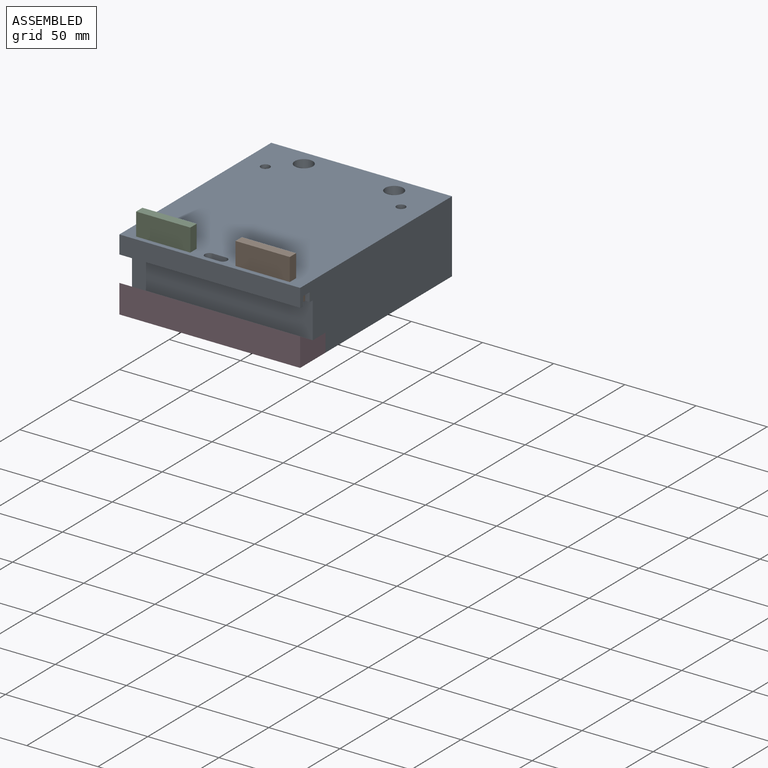
[diagram: assembled view]
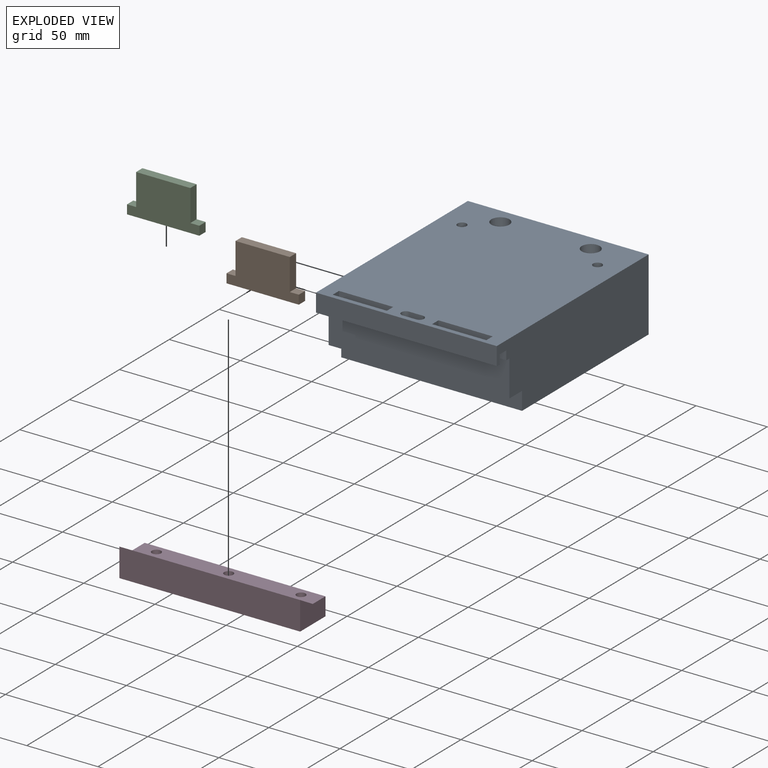
[diagram: exploded view]
GUIDED TOUR — MATED ASSEMBLY (Onshape document d9a144167c7f9d420005e96d, AutoMate assembly d9a144167c7f9d420005e96d_159f322b29f10cdbaa24fca3_0e208d33bbd569624d012d57_default)

This assembly has 4 components, labeled P0..P3 below (a component is one placed occurrence of a part; the same part can appear more than once), held together by 3 mates. A mate is a constraint between two components; its type names the relative motion it leaves free:
  PLANAR — leaves sliding in the plane through the listed point (normal = the listed direction) and rotation about that normal free.
Axis/direction vectors are unit vectors and 'through' points are millimeter coordinates, both in the assembly's world frame.

MATES
  1. PLANAR "Planar 1": P3 <-> P0, direction (0.000, 0.000, 1.000) through (-6.27, -62.76, -68.65) mm
  2. PLANAR "Planar 3": P2 <-> P0, direction (0.000, 0.000, 1.000) through (-123.74, -84.99, -36.90) mm
  3. PLANAR "Planar 2": P1 <-> P0, direction (0.000, 0.000, 1.000) through (-15.79, -84.99, -36.90) mm

ASSEMBLY ORDER
  1. P1 — the base component [order verified]
  2. P0 [order verified]
  3. P2 [order verified]
  4. P3 [order verified]
Order-tag legend:
  [order verified] — this step's position reverses a verified removal order: the component was checked to insert without passing through the ones already placed.

Of the 4 components, 4 carry the full construction recipe — the FeatureScript program that regenerates the part's solid from scratch; the rest are supplied as boundary geometry only.
Each toured component is shown spotlighted twice — in the assembled view, then in the exploded view, where a leader line traces a displaced component back to its assembled socket (saturated green if recipe-attached, orange if geometry-only; every other component desaturated gray) — followed by its recipe or geometry summary and the mates that hold it.
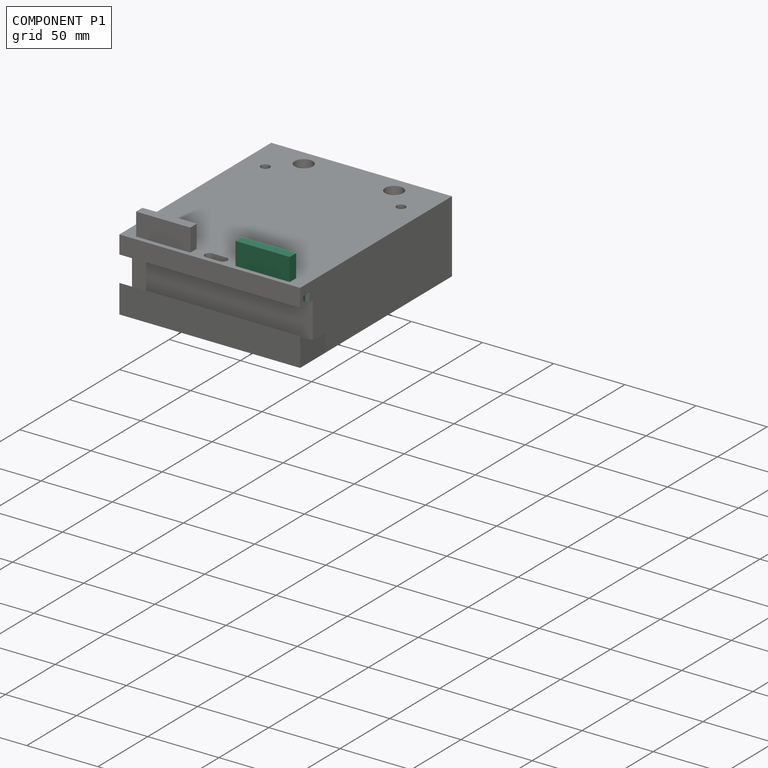
[diagram: component P1 — assembled]
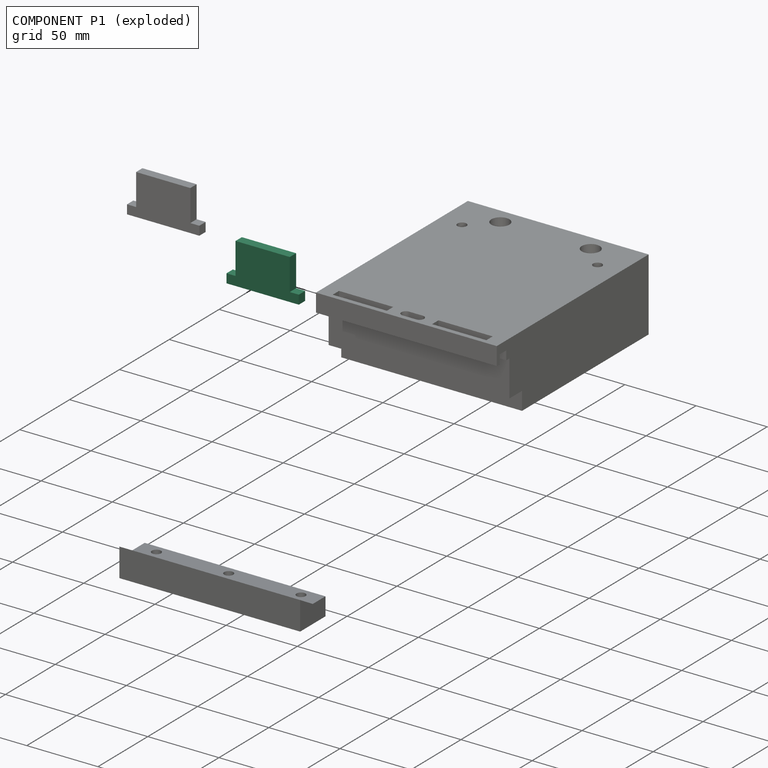
[diagram: component P1 — exploded]
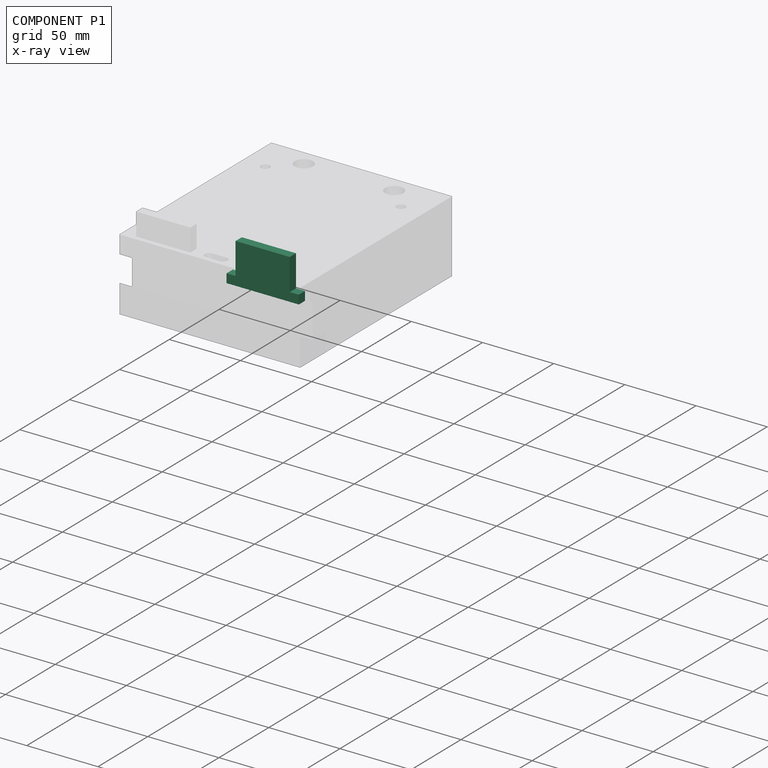
[diagram: component P1 — x-ray view]
COMPONENT P1 — recipe-attached (CADFS 00811123, mesh-verified: the recipe's output STEP matches this component's geometry to below the mesh-comparison resolution (tessellation chordal tolerance ~0.0879 mm)).
Held by: PLANAR mate "Planar 2" to P0.
Construction recipe (FeatureScript — the CAD program that rebuilds this solid; sketch coordinates are in the units given by the * unit suffixes, e.g. mm):

FeatureScript 1511;
import(path : "onshape/std/geometry.fs", version : "1511.0");
import(path : "onshape/std/common.fs", version : "1511.0");
const mm = millimeter;
const VERTEX = EntityType.VERTEX;
const EDGE = EntityType.EDGE;
const FACE = EntityType.FACE;
const BODY = EntityType.BODY;
function v(x, y){return vector(x, y);}
function OD(order){return orderDisambiguation(order);}
function OSD(set){return originalSetDisambiguation(set);}
function TD(topology){return topologyDisambiguation(topology);}
function TDD(query){return trueDependencyDisambiguation(query);}
function sQuery(a, b, c) {return sketchEntityQuery(a, b, c);}

annotation { "Feature Type Name" : "Feature", "Feature Type Description" : "" }
export const myFeature = defineFeature(function(context is Context, id is Id, definition is map)
    precondition{}
    {
        {
            var Q0;
            Q0=qCreatedBy(makeId("Front.planeOp"),FACE);
            var sketch = newSketch(context, id + "F0", { "sketchPlane" : qUnion([Q0])});
            skLineSegment(sketch, "E0", {"start": v(0, 0) * mm, "end": v(0, 6.35) * mm});
            skLineSegment(sketch, "E1", {"start": v(0, 6.35) * mm, "end": v(6.35, 6.35) * mm});
            skLineSegment(sketch, "E2", {"start": v(6.35, 6.35) * mm, "end": v(6.35, 28.57) * mm});
            skLineSegment(sketch, "E3", {"start": v(6.35, 28.57) * mm, "end": v(44.45, 28.57) * mm});
            skLineSegment(sketch, "E4", {"start": v(44.45, 28.57) * mm, "end": v(44.45, 6.35) * mm});
            skLineSegment(sketch, "E5", {"start": v(44.45, 6.35) * mm, "end": v(50.8, 6.35) * mm});
            skLineSegment(sketch, "E6", {"start": v(50.8, 6.35) * mm, "end": v(50.8, 0) * mm});
            skLineSegment(sketch, "E7", {"start": v(50.8, 0) * mm, "end": v(0, 0) * mm});
            skSolve(sketch);
        }
        {
            var Q0;
            Q0 = qSketchRegion(id + "F0", true);
            extrude(context, id + "F1", {"entities" : qUnion([Q0]), "oppositeDirection" : true, "depth" : 6.35 * mm, "offsetDistance" : 25.4 * mm});
        }
    });
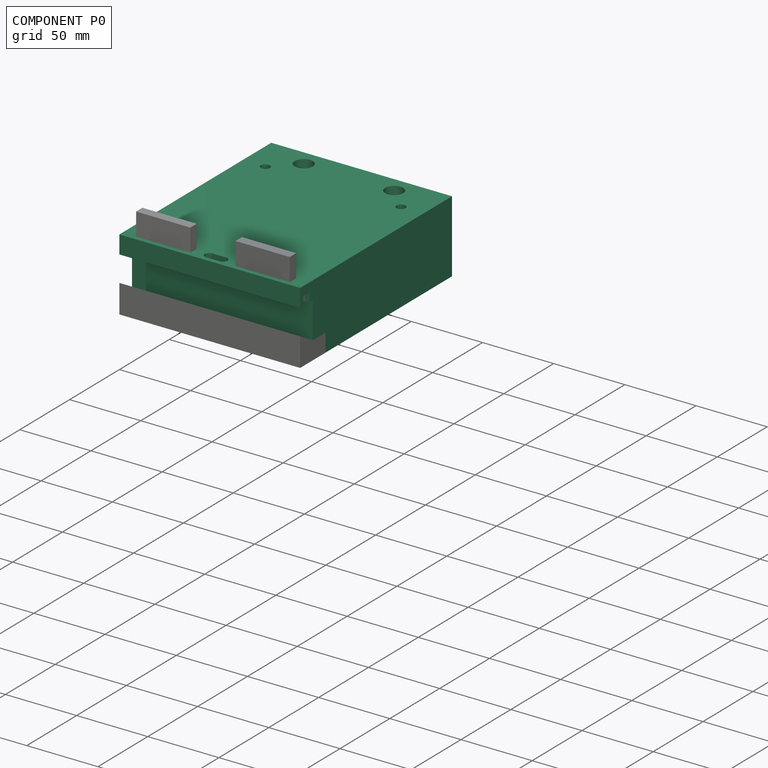
[diagram: component P0 — assembled]
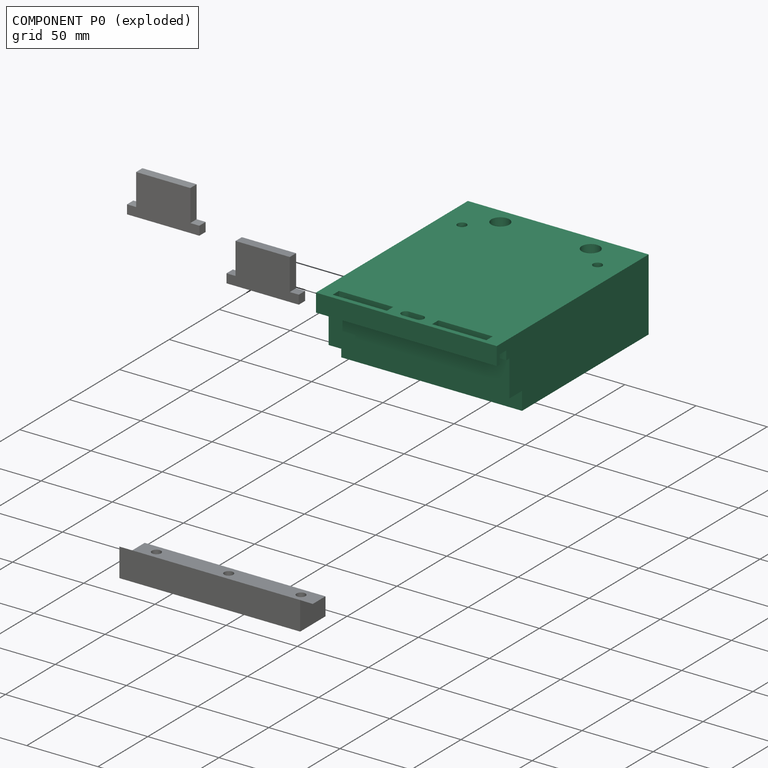
[diagram: component P0 — exploded]
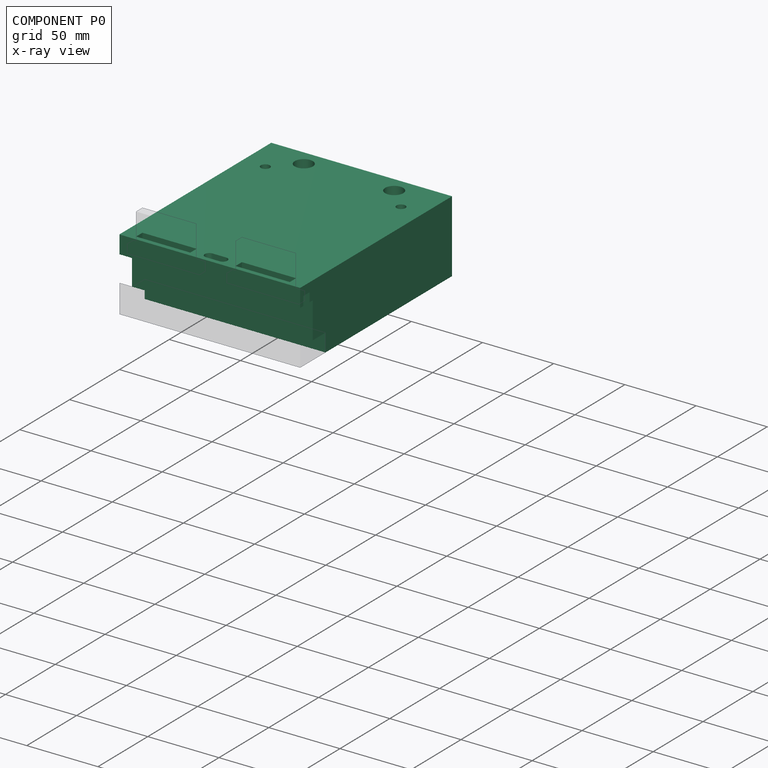
[diagram: component P0 — x-ray view]
COMPONENT P0 — recipe-attached (CADFS 00811121, mesh-verified: the recipe's output STEP matches this component's geometry to below the mesh-comparison resolution (tessellation chordal tolerance ~0.307 mm)).
Held by: PLANAR mate "Planar 1" to P3; PLANAR mate "Planar 3" to P2; PLANAR mate "Planar 2" to P1.
Construction recipe (FeatureScript — the CAD program that rebuilds this solid; sketch coordinates are in the units given by the * unit suffixes, e.g. mm):

FeatureScript 1511;
import(path : "onshape/std/geometry.fs", version : "1511.0");
import(path : "onshape/std/common.fs", version : "1511.0");
const mm = millimeter;
const VERTEX = EntityType.VERTEX;
const EDGE = EntityType.EDGE;
const FACE = EntityType.FACE;
const BODY = EntityType.BODY;
function v(x, y){return vector(x, y);}
function OD(order){return orderDisambiguation(order);}
function OSD(set){return originalSetDisambiguation(set);}
function TD(topology){return topologyDisambiguation(topology);}
function TDD(query){return trueDependencyDisambiguation(query);}
function sQuery(a, b, c) {return sketchEntityQuery(a, b, c);}

annotation { "Feature Type Name" : "Feature", "Feature Type Description" : "" }
export const myFeature = defineFeature(function(context is Context, id is Id, definition is map)
    precondition{}
    {
        {
            var Q0;
            Q0=qCreatedBy(makeId("Top.planeOp"),FACE);
            var sketch = newSketch(context, id + "F0", { "sketchPlane" : qUnion([Q0])});
            skLineSegment(sketch, "E0.bottom", {"start": v(63.5, -76.2) * mm, "end": v(-63.5, -76.2) * mm});
            skLineSegment(sketch, "E0.top", {"start": v(63.5, 76.2) * mm, "end": v(-63.5, 76.2) * mm});
            skLineSegment(sketch, "E0.left", {"start": v(63.5, -76.2) * mm, "end": v(63.5, 76.2) * mm});
            skLineSegment(sketch, "E0.right", {"start": v(-63.5, -76.2) * mm, "end": v(-63.5, 76.2) * mm});
            skPoint(sketch, "E0.middle", {"position": v(0, 0) * mm});
            skSolve(sketch);
        }
        {
            var Q0;
            Q0 = qSketchRegion(id + "F0", true);
            extrude(context, id + "F1", {"entities" : qUnion([Q0]), "oppositeDirection" : true, "depth" : 50.8 * mm, "offsetDistance" : 25.4 * mm});
        }
        {
            var Q0;
            Q0=makeQuery(id+"F1.opExtrude","SWEPT_FACE",FACE,{"disambiguationData":[OSD([sQuery(id+"F0.wireOp",EDGE,"E0.left")])]});
            var sketch = newSketch(context, id + "F2", { "sketchPlane" : qUnion([Q0])});
            skLineSegment(sketch, "E1", {"start": v(-76.2, -50.8) * mm, "end": v(-50.8, -50.8) * mm});
            skLineSegment(sketch, "E2", {"start": v(-50.8, -50.8) * mm, "end": v(-50.8, -38.1) * mm});
            skLineSegment(sketch, "E3", {"start": v(-50.8, -38.1) * mm, "end": v(-63.5, -38.1) * mm});
            skLineSegment(sketch, "E4", {"start": v(-63.5, -38.1) * mm, "end": v(-63.5, -12.7) * mm});
            skLineSegment(sketch, "E5", {"start": v(-63.5, -12.7) * mm, "end": v(-66.67, -12.7) * mm});
            skLineSegment(sketch, "E6", {"start": v(-76.2, -12.7) * mm, "end": v(-76.2, -50.8) * mm});
            skLineSegment(sketch, "E7", {"start": v(-66.67, -6.35) * mm, "end": v(-73.02, -6.35) * mm});
            skLineSegment(sketch, "E8", {"start": v(-73.02, -6.35) * mm, "end": v(-73.02, -12.7) * mm});
            skLineSegment(sketch, "E9", {"start": v(-66.67, -6.35) * mm, "end": v(-66.67, -12.7) * mm});
            skLineSegment(sketch, "E10.trimOffspring", {"start": v(-73.02, -12.7) * mm, "end": v(-76.2, -12.7) * mm});
            skSolve(sketch);
        }
        {
            var Q0;
            Q0 = qSketchRegion(id + "F2", true);
            extrude(context, id + "F3", {"entities" : qUnion([Q0]), "operationType" : NewBodyOperationType.REMOVE, "endBound" : BoundingType.THROUGH_ALL, "oppositeDirection" : true, "depth" : 25.4 * mm, "offsetDistance" : 25.4 * mm});
        }
        {
            var Q0;
            Q0=makeQuery(id+"F3.boolean.opBoolean","COPY",FACE,{"derivedFrom":makeQuery(id+"F3.opExtrude","SWEPT_FACE",FACE,{"disambiguationData":[OSD([sQuery(id+"F2.wireOp",EDGE,"E3")])]})});
            var sketch = newSketch(context, id + "F4", { "sketchPlane" : qUnion([Q0])});
            skLineSegment(sketch, "E11", {"start": v(-63.5, 57.15) * mm, "end": v(63.5, 57.15) * mm});
            skCircle(sketch, "E12", {"center": v(0, 57.15) * mm, "radius": 3.18 * mm});
            skCircle(sketch, "E13", {"center": v(50.8, 57.15) * mm, "radius": 3.18 * mm});
            skCircle(sketch, "E14", {"center": v(-50.8, 57.15) * mm, "radius": 3.18 * mm});
            skSolve(sketch);
        }
        {
            var Q0;
            Q0 = qSketchRegion(id + "F4", true);
            extrude(context, id + "F5", {"entities" : qUnion([Q0]), "operationType" : NewBodyOperationType.REMOVE, "oppositeDirection" : true, "depth" : 12.7 * mm, "offsetDistance" : 25.4 * mm});
        }
        {
            var Q0;
            Q0=makeQuery(id+"F3.boolean.opBoolean","COPY",FACE,{"derivedFrom":makeQuery(id+"F3.opExtrude","SWEPT_FACE",FACE,{"disambiguationData":[OSD([sQuery(id+"F2.wireOp",EDGE,"E7")])]})});
            var sketch = newSketch(context, id + "F6", { "sketchPlane" : qUnion([Q0])});
            skLineSegment(sketch, "E15.0", {"start": v(-53.97, 73.02) * mm, "end": v(-15.88, 73.02) * mm});
            skLineSegment(sketch, "E15.1", {"start": v(-53.97, 66.67) * mm, "end": v(-15.88, 66.67) * mm});
            skLineSegment(sketch, "E16.0", {"start": v(-15.88, 73.02) * mm, "end": v(-15.88, 66.67) * mm});
            skLineSegment(sketch, "E17.0", {"start": v(15.88, 73.02) * mm, "end": v(15.88, 66.67) * mm});
            skLineSegment(sketch, "E18.0", {"start": v(-53.98, 73.02) * mm, "end": v(-53.98, 66.67) * mm});
            skLineSegment(sketch, "E19.0", {"start": v(53.98, 73.02) * mm, "end": v(53.98, 66.67) * mm});
            skPoint(sketch, "E20.orphan", {"position": v(63.5, 73.02) * mm});
            skPoint(sketch, "E21.orphan", {"position": v(63.5, 66.67) * mm});
            skLineSegment(sketch, "E22.trimOffspring", {"start": v(15.88, 66.67) * mm, "end": v(53.97, 66.67) * mm});
            skLineSegment(sketch, "E23.trimOffspring", {"start": v(15.88, 73.02) * mm, "end": v(53.97, 73.02) * mm});
            skPoint(sketch, "E24.orphan", {"position": v(-63.5, 73.02) * mm});
            skPoint(sketch, "E25.orphan", {"position": v(-63.5, 66.67) * mm});
            skSolve(sketch);
        }
        {
            var Q0;
            Q0 = qSketchRegion(id + "F6", true);
            extrude(context, id + "F7", {"entities" : qUnion([Q0]), "operationType" : NewBodyOperationType.REMOVE, "endBound" : BoundingType.THROUGH_ALL, "oppositeDirection" : true, "depth" : 25.4 * mm, "offsetDistance" : 25.4 * mm});
        }
        {
            var Q0;
            Q0=makeQuery(id+"F1.opExtrude","CAP_FACE",FACE,{"disambiguationData":[OSD([sQuery(id+"F0.wireOp",EDGE,"E0.bottom"),sQuery(id+"F0.wireOp",EDGE,"E0.top"),sQuery(id+"F0.wireOp",EDGE,"E0.left"),sQuery(id+"F0.wireOp",EDGE,"E0.right")])],"isStart":true});
            var sketch = newSketch(context, id + "F8", { "sketchPlane" : qUnion([Q0])});
            skCircle(sketch, "E26", {"center": v(-31.75, 63.5) * mm, "radius": 6.35 * mm});
            skCircle(sketch, "E27", {"center": v(31.75, 63.5) * mm, "radius": 6.35 * mm});
            skLineSegment(sketch, "E28", {"start": v(-31.75, 63.5) * mm, "end": v(-63.5, 63.5) * mm});
            skLineSegment(sketch, "E29", {"start": v(31.75, 63.5) * mm, "end": v(63.5, 63.5) * mm});
            skLineSegment(sketch, "E30", {"start": v(-47.62, 63.5) * mm, "end": v(-47.62, 47.62) * mm});
            skLineSegment(sketch, "E31", {"start": v(47.62, 63.5) * mm, "end": v(47.62, 47.62) * mm});
            skCircle(sketch, "E32", {"center": v(-47.62, 47.62) * mm, "radius": 3.18 * mm});
            skCircle(sketch, "E33", {"center": v(47.62, 47.62) * mm, "radius": 3.18 * mm});
            skSolve(sketch);
        }
        {
            var Q0;
            Q0 = qSketchRegion(id + "F8", true);
            extrude(context, id + "F9", {"entities" : qUnion([Q0]), "operationType" : NewBodyOperationType.REMOVE, "endBound" : BoundingType.THROUGH_ALL, "oppositeDirection" : true, "depth" : 25.4 * mm, "offsetDistance" : 25.4 * mm});
        }
        {
            var Q0;
            Q0=makeQuery(id+"F1.opExtrude","CAP_FACE",FACE,{"disambiguationData":[OSD([sQuery(id+"F0.wireOp",EDGE,"E0.bottom"),sQuery(id+"F0.wireOp",EDGE,"E0.top"),sQuery(id+"F0.wireOp",EDGE,"E0.left"),sQuery(id+"F0.wireOp",EDGE,"E0.right")])],"isStart":true});
            var sketch = newSketch(context, id + "F10", { "sketchPlane" : qUnion([Q0])});
            skLineSegment(sketch, "E34.0", {"start": v(63.5, -76.2) * mm, "end": v(-63.5, -76.2) * mm});
            skPoint(sketch, "E35.endSnap0", {"position": v(15.88, -69.85) * mm});
            skArc(sketch, "E36", {"start": v(-4.76, -66.67) * mm, "mid": v(-7.94, -69.85) * mm, "end": v(-4.76, -73.02) * mm});
            skArc(sketch, "E37", {"start": v(4.76, -73.02) * mm, "mid": v(7.94, -69.85) * mm, "end": v(4.76, -66.67) * mm});
            skLineSegment(sketch, "E38", {"start": v(-4.76, -73.02) * mm, "end": v(4.76, -73.02) * mm});
            skLineSegment(sketch, "E39", {"start": v(-4.76, -66.67) * mm, "end": v(4.76, -66.67) * mm});
            skSolve(sketch);
        }
        {
            var Q0;
            Q0 = qSketchRegion(id + "F10", true);
            extrude(context, id + "F11", {"entities" : qUnion([Q0]), "operationType" : NewBodyOperationType.REMOVE, "endBound" : BoundingType.THROUGH_ALL, "oppositeDirection" : true, "depth" : 25.4 * mm, "offsetDistance" : 25.4 * mm});
        }
    });
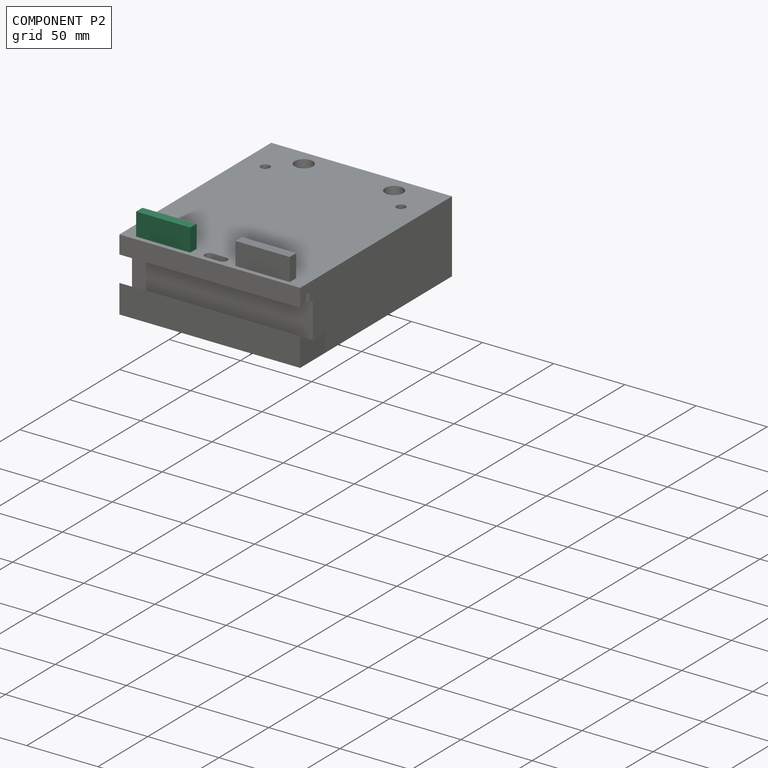
[diagram: component P2 — assembled]
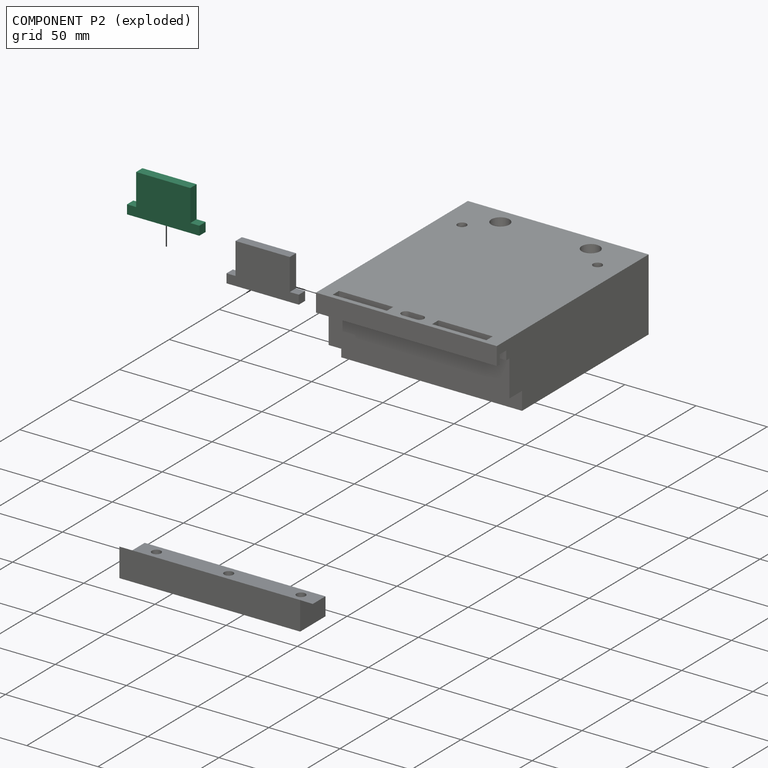
[diagram: component P2 — exploded]
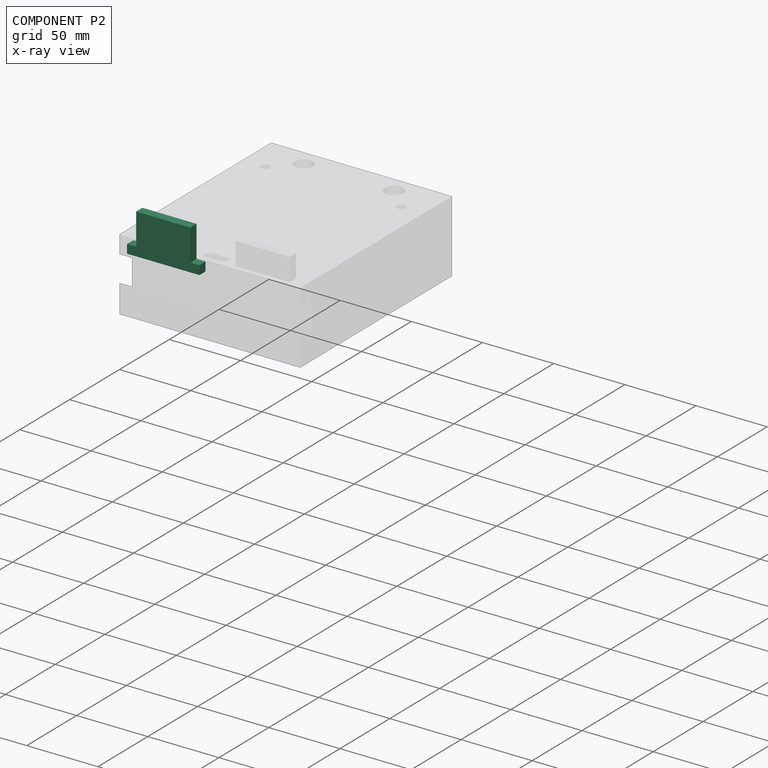
[diagram: component P2 — x-ray view]
COMPONENT P2 — same part as P1 (CADFS 00811123); its construction recipe is shown at P1.
Held by: PLANAR mate "Planar 3" to P0.
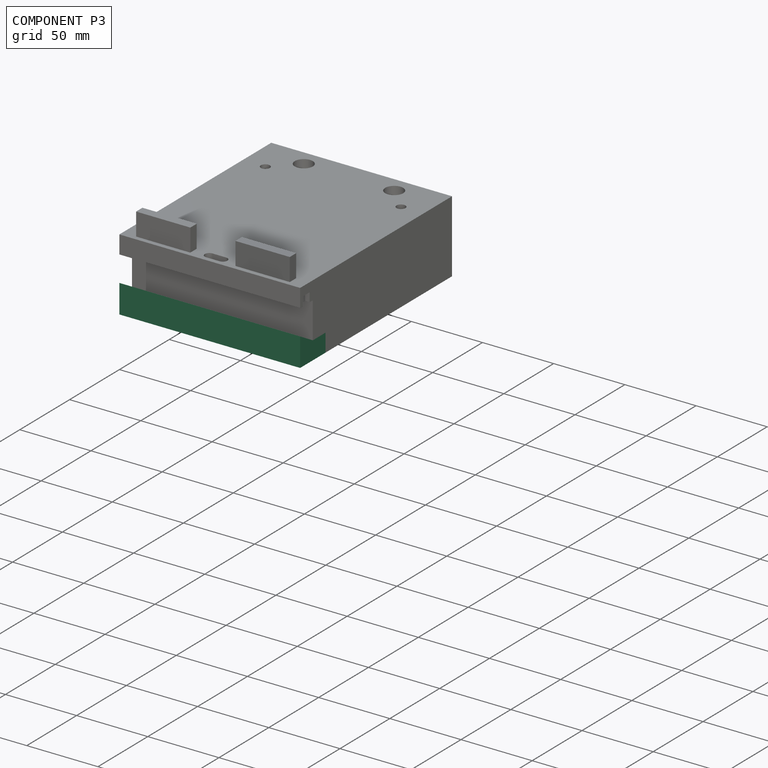
[diagram: component P3 — assembled]
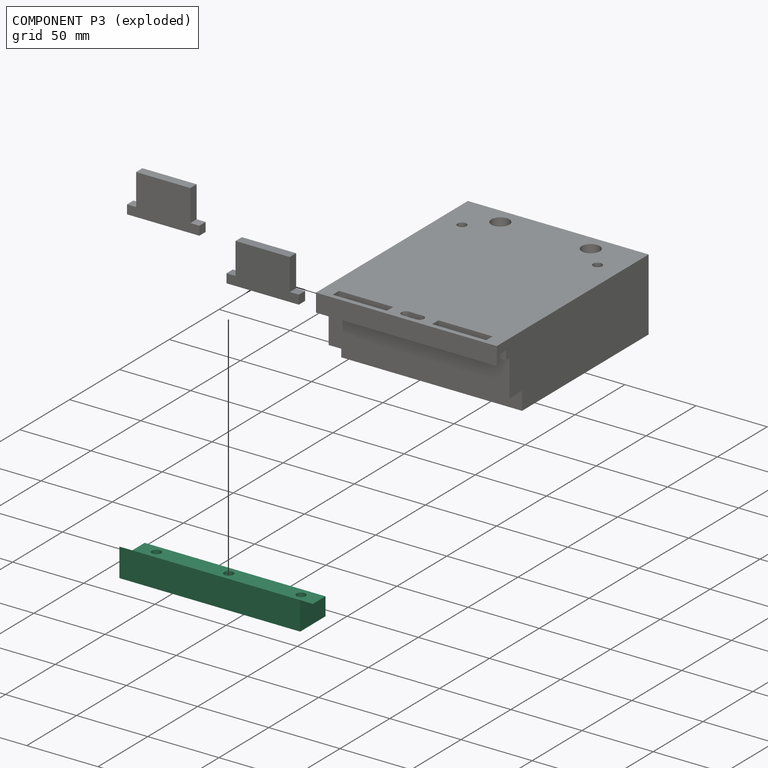
[diagram: component P3 — exploded]
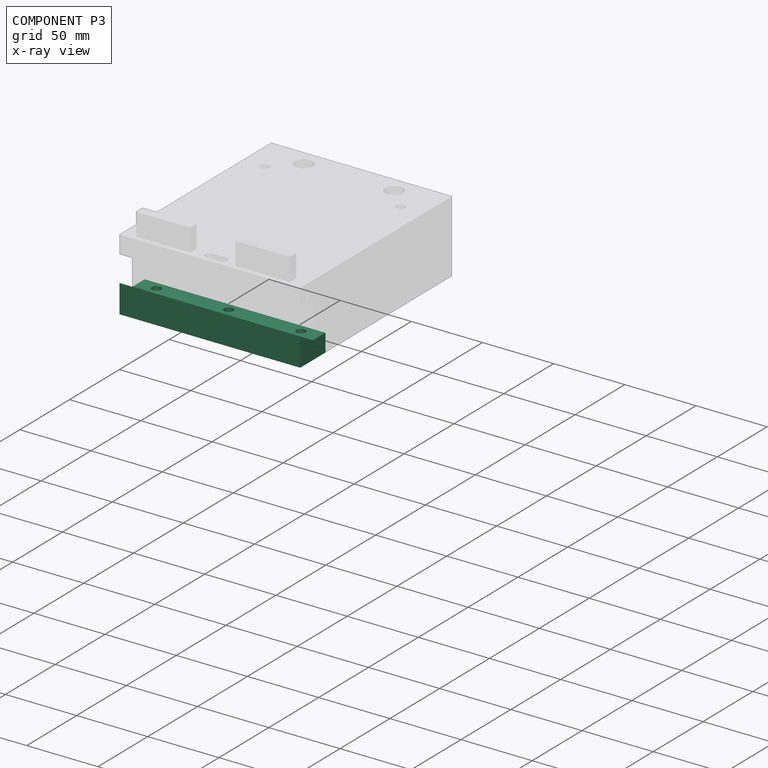
[diagram: component P3 — x-ray view]
COMPONENT P3 — recipe-attached (CADFS 00811122, mesh-verified: the recipe's output STEP matches this component's geometry to below the mesh-comparison resolution (tessellation chordal tolerance ~0.197 mm)).
Held by: PLANAR mate "Planar 1" to P0.
Construction recipe (FeatureScript — the CAD program that rebuilds this solid; sketch coordinates are in the units given by the * unit suffixes, e.g. mm):

FeatureScript 1511;
import(path : "onshape/std/geometry.fs", version : "1511.0");
import(path : "onshape/std/common.fs", version : "1511.0");
const mm = millimeter;
const VERTEX = EntityType.VERTEX;
const EDGE = EntityType.EDGE;
const FACE = EntityType.FACE;
const BODY = EntityType.BODY;
function v(x, y){return vector(x, y);}
function OD(order){return orderDisambiguation(order);}
function OSD(set){return originalSetDisambiguation(set);}
function TD(topology){return topologyDisambiguation(topology);}
function TDD(query){return trueDependencyDisambiguation(query);}
function sQuery(a, b, c) {return sketchEntityQuery(a, b, c);}

annotation { "Feature Type Name" : "Feature", "Feature Type Description" : "" }
export const myFeature = defineFeature(function(context is Context, id is Id, definition is map)
    precondition{}
    {
        {
            var Q0;
            Q0=qCreatedBy(makeId("Right.planeOp"),FACE);
            var sketch = newSketch(context, id + "F0", { "sketchPlane" : qUnion([Q0])});
            skLineSegment(sketch, "E0", {"start": v(0, 0) * mm, "end": v(25.4, 0) * mm});
            skLineSegment(sketch, "E1", {"start": v(25.4, 0) * mm, "end": v(25.4, 12.7) * mm});
            skLineSegment(sketch, "E2", {"start": v(25.4, 12.7) * mm, "end": v(12.7, 12.7) * mm});
            skLineSegment(sketch, "E3", {"start": v(12.7, 12.7) * mm, "end": v(0, 20.03) * mm});
            skLineSegment(sketch, "E4", {"start": v(0, 20.03) * mm, "end": v(0, 0) * mm});
            skSolve(sketch);
        }
        {
            var Q0;
            Q0 = qSketchRegion(id + "F0", true);
            extrude(context, id + "F1", {"entities" : qUnion([Q0]), "oppositeDirection" : true, "depth" : 127 * mm, "offsetDistance" : 25.4 * mm});
        }
        {
            var Q0;
            Q0=makeQuery(id+"F1.opExtrude","SWEPT_FACE",FACE,{"disambiguationData":[OSD([sQuery(id+"F0.wireOp",EDGE,"E2")])]});
            var sketch = newSketch(context, id + "F2", { "sketchPlane" : qUnion([Q0])});
            skLineSegment(sketch, "E5", {"start": v(-127, 19.05) * mm, "end": v(0, 19.05) * mm});
            skCircle(sketch, "E6", {"center": v(-63.5, 19.05) * mm, "radius": 3.18 * mm});
            skCircle(sketch, "E7", {"center": v(-12.7, 19.05) * mm, "radius": 3.18 * mm});
            skCircle(sketch, "E8", {"center": v(-114.3, 19.05) * mm, "radius": 3.18 * mm});
            skSolve(sketch);
        }
        {
            var Q0;
            Q0 = qSketchRegion(id + "F2", true);
            extrude(context, id + "F3", {"entities" : qUnion([Q0]), "operationType" : NewBodyOperationType.REMOVE, "endBound" : BoundingType.THROUGH_ALL, "oppositeDirection" : true, "depth" : 25.4 * mm, "offsetDistance" : 25.4 * mm});
        }
    });
PROVENANCE & LICENSES
Assembly (occurrences, transforms, mates, per-part STEP geometry): AutoMate dataset, Zenodo record 7776208, CC0.
Construction recipes: CADFS (HuggingFace VladPyatov/CADFS, CC-BY-4.0, layered over the ABC dataset), FeatureScript reconstruction programs keyed by ABC model id.
Join: ABC meta listings map ABC model id -> Onshape documentId; within a shared document, parts are matched by geometric signature (bounding-box dims + volume at 0.1% relative tolerance, exact B-rep face/solid counts).
Verification: 4 of this assembly's 4 components carry a recipe attachment, and every attachment is mesh-verified: the CADFS STEP and the AutoMate member STEP were compared as meshes in their shared local frame (symmetric sampled-point-to-mesh distance); worst across the 4 attachments: below the mesh-comparison resolution (tessellation chordal tolerance ~0.307 mm) on a 205 mm part.
Renders: orthographic iso camera (az 35 / el 25); the floor grid conveys scale (grid pitch printed in each image; no ruler). In the exploded view each component is displaced by its stored offset vector: the offsets alone carry the explosion direction (mate normal/axis signs are not orientation cues and do not encode it), and separation distances are assigned per mate-chain, not proportionally to assembly-order depth.
